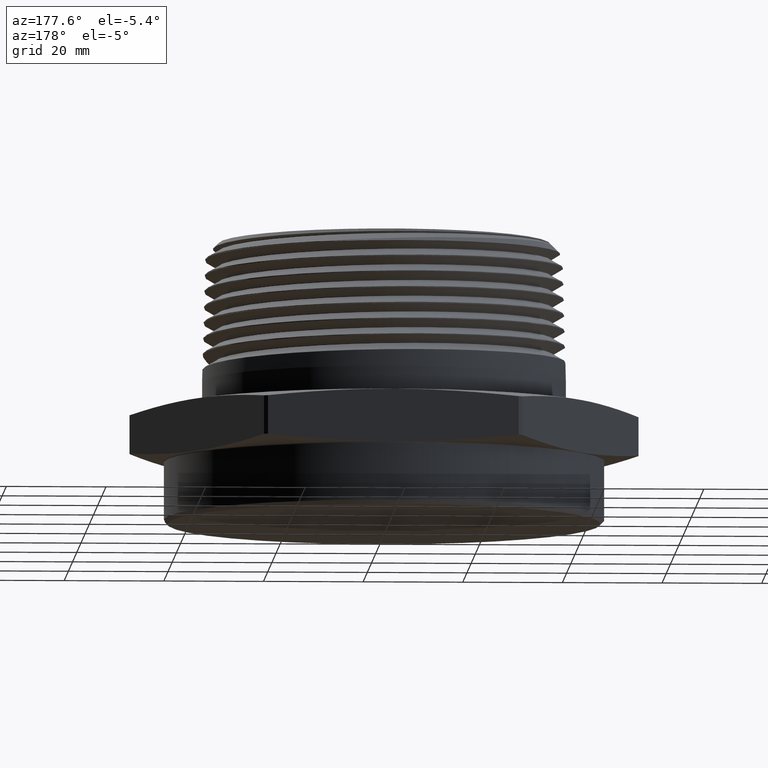
[diagram: clean part render]
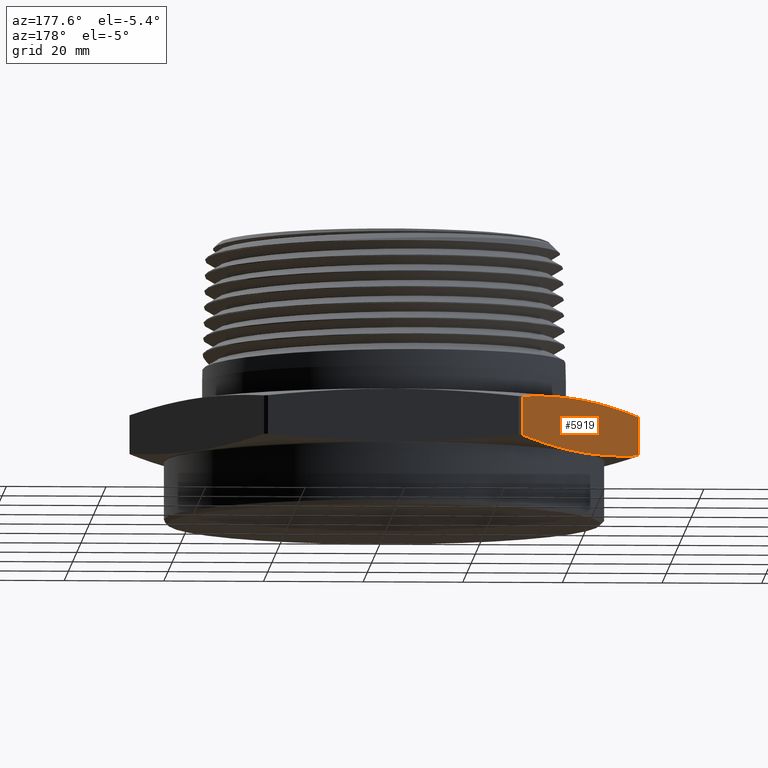
[diagram: same view with one face highlighted and labeled with its STEP entity id]
A machine part, auxiliary view. The second image highlights one B-rep face of the part: STEP entity #5919.
In plain terms, the highlighted planar face has unit normal (0.866, -0.5, 0).
Its self-contained STEP definition (entity closure, byte-faithful):
#6 = ORIENTED_EDGE ( 'NONE', *, *, #4866, .T. ) ;
#13 = CARTESIAN_POINT ( 'NONE',  ( -2.010650206561622100, 0.01745168598641251600, 0.05754457542118947300 ) ) ;
#18 = CARTESIAN_POINT ( 'NONE',  ( -1.020438706683912700, 1.732548314013587800, 0.05754457542118947300 ) ) ;
#28 = CARTESIAN_POINT ( 'NONE',  ( -1.020438706683912500, 1.732548314013587600, 0.3624554245788103000 ) ) ;
#29 = CARTESIAN_POINT ( 'NONE',  ( -2.010650206561622100, 0.01745168598641251600, 0.3624554245788104700 ) ) ;
#476 = EDGE_LOOP ( 'NONE', ( #6, #4042, #4041, #4073 ) ) ;
#497 = VERTEX_POINT ( 'NONE', #18 ) ;
#503 = VERTEX_POINT ( 'NONE', #13 ) ;
#513 = VERTEX_POINT ( 'NONE', #28 ) ;
#514 = VERTEX_POINT ( 'NONE', #29 ) ;
#3595 = CARTESIAN_POINT ( 'NONE',  ( -2.010650206561622100, 0.01745168598641251600, 6.213510559871397500E-017 ) ) ;
#3596 = DIRECTION ( 'NONE',  ( 1.254986547952384500E-016, 0.0000000000000000000, 1.000000000000000000 ) ) ;
#3621 = CARTESIAN_POINT ( 'NONE',  ( -1.020438706683912700, 1.732548314013587800, -6.213510559871397500E-017 ) ) ;
#3622 = DIRECTION ( 'NONE',  ( -1.254986547952384500E-016, -0.0000000000000000000, -1.000000000000000000 ) ) ;
#3695 = LINE ( 'NONE', #3621, #3699 ) ;
#3699 = VECTOR ( 'NONE', #3622, 39.37007874015748100 ) ;
#3742 = FACE_OUTER_BOUND ( 'NONE', #476, .T. ) ;
#3994 = CARTESIAN_POINT ( 'NONE',  ( -1.020438706683912700, 1.732548314013587800, 0.05754457542118947300 ) ) ;
#3997 = CARTESIAN_POINT ( 'NONE',  ( -1.102956331673721900, 1.589623595011323100, 0.04026924685366250300 ) ) ;
#3998 = CARTESIAN_POINT ( 'NONE',  ( -1.185473956663531100, 1.446698876009058200, 0.02627558741560170200 ) ) ;
#3999 = CARTESIAN_POINT ( 'NONE',  ( -1.350509206643149200, 1.160849438004529100, 0.007176142057229338400 ) ) ;
#4000 = CARTESIAN_POINT ( 'NONE',  ( -1.515544456622767400, 0.8749999999999991100, -0.002925010823829164200 ) ) ;
#4001 = CARTESIAN_POINT ( 'NONE',  ( -1.680579706602385300, 0.5891505619954706700, 0.007176142057229357500 ) ) ;
#4002 = CARTESIAN_POINT ( 'NONE',  ( -1.845614956582003900, 0.3033011239909415600, 0.02627558741560175700 ) ) ;
#4003 = CARTESIAN_POINT ( 'NONE',  ( -1.928132581571814000, 0.1603764049886772800, 0.04026924685366266300 ) ) ;
#4004 = CARTESIAN_POINT ( 'NONE',  ( -2.010650206561622100, 0.01745168598641251600, 0.05754457542118947300 ) ) ;
#4041 = ORIENTED_EDGE ( 'NONE', *, *, #5789, .T. ) ;
#4042 = ORIENTED_EDGE ( 'NONE', *, *, #5866, .T. ) ;
#4073 = ORIENTED_EDGE ( 'NONE', *, *, #5877, .T. ) ;
#4136 = CARTESIAN_POINT ( 'NONE',  ( -1.928132581571813100, 0.1603764049886771100, 0.3797307531463373600 ) ) ;
#4137 = CARTESIAN_POINT ( 'NONE',  ( -2.010650206561622100, 0.01745168598641251600, 0.3624554245788104700 ) ) ;
#4141 = CARTESIAN_POINT ( 'NONE',  ( -1.845614956582004800, 0.3033011239909415600, 0.3937244125843981600 ) ) ;
#4142 = CARTESIAN_POINT ( 'NONE',  ( -1.680579706602385800, 0.5891505619954704500, 0.4128238579427706600 ) ) ;
#4143 = CARTESIAN_POINT ( 'NONE',  ( -1.515544456622767400, 0.8750000000000000000, 0.4229250108238288800 ) ) ;
#4144 = CARTESIAN_POINT ( 'NONE',  ( -1.350509206643149200, 1.160849438004529100, 0.4128238579427704300 ) ) ;
#4145 = CARTESIAN_POINT ( 'NONE',  ( -1.185473956663531500, 1.446698876009058000, 0.3937244125843980500 ) ) ;
#4146 = CARTESIAN_POINT ( 'NONE',  ( -1.102956331673722300, 1.589623595011322400, 0.3797307531463373100 ) ) ;
#4147 = CARTESIAN_POINT ( 'NONE',  ( -1.020438706683912500, 1.732548314013587600, 0.3624554245788103000 ) ) ;
#4550 = CARTESIAN_POINT ( 'NONE',  ( -1.010362971081844900, 1.750000000000000200, 0.4199999999999999800 ) ) ;
#4552 = PLANE ( 'NONE',  #4965 ) ;
#4554 = DIRECTION ( 'NONE',  ( 0.8660254037844386000, -0.5000000000000001100, 0.0000000000000000000 ) ) ;
#4555 = DIRECTION ( 'NONE',  ( 0.5000000000000001100, 0.8660254037844386000, 0.0000000000000000000 ) ) ;
#4866 = EDGE_CURVE ( 'NONE', #497, #503, #6612, .T. ) ;
#4965 = AXIS2_PLACEMENT_3D ( 'NONE', #4550, #4554, #4555 ) ;
#5758 = LINE ( 'NONE', #3595, #5761 ) ;
#5761 = VECTOR ( 'NONE', #3596, 39.37007874015748100 ) ;
#5789 = EDGE_CURVE ( 'NONE', #514, #513, #6608, .T. ) ;
#5866 = EDGE_CURVE ( 'NONE', #503, #514, #5758, .T. ) ;
#5877 = EDGE_CURVE ( 'NONE', #513, #497, #3695, .T. ) ;
#5919 = ADVANCED_FACE ( 'NONE', ( #3742 ), #4552, .F. ) ;
#6608 = B_SPLINE_CURVE_WITH_KNOTS ( 'NONE', 3,
 ( #4137, #4136, #4141, #4142, #4143, #4144, #4145, #4146, #4147 ),
 .UNSPECIFIED., .F., .F.,
 ( 4, 2, 1, 2, 4 ),
 ( 1.910591760083867800E-006, 0.01257759664020698600, 0.02515328268865388600, 0.03772896873710079200, 0.05030465478554769400 ),
 .UNSPECIFIED. ) ;
#6612 = B_SPLINE_CURVE_WITH_KNOTS ( 'NONE', 3,
 ( #3994, #3997, #3998, #3999, #4000, #4001, #4002, #4003, #4004 ),
 .UNSPECIFIED., .F., .F.,
 ( 4, 2, 1, 2, 4 ),
 ( 1.910591760072368100E-006, 0.01257759664020697100, 0.02515328268865387900, 0.03772896873710078500, 0.05030465478554770100 ),
 .UNSPECIFIED. ) ;